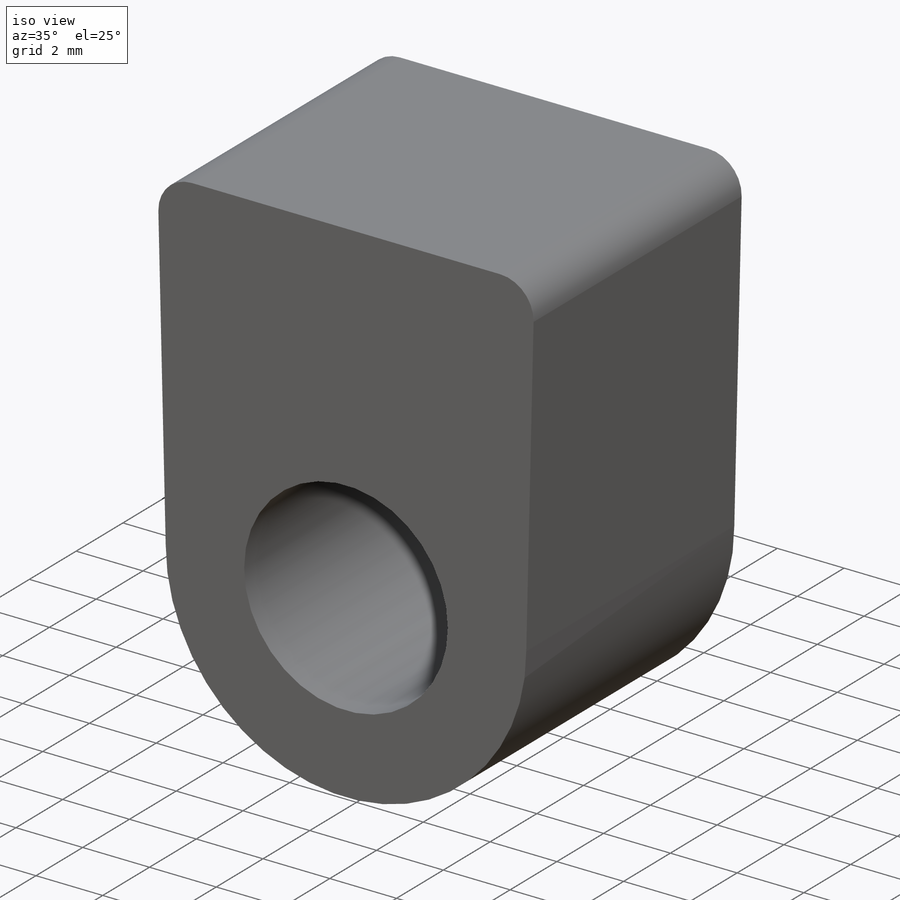
[diagram: iso view]
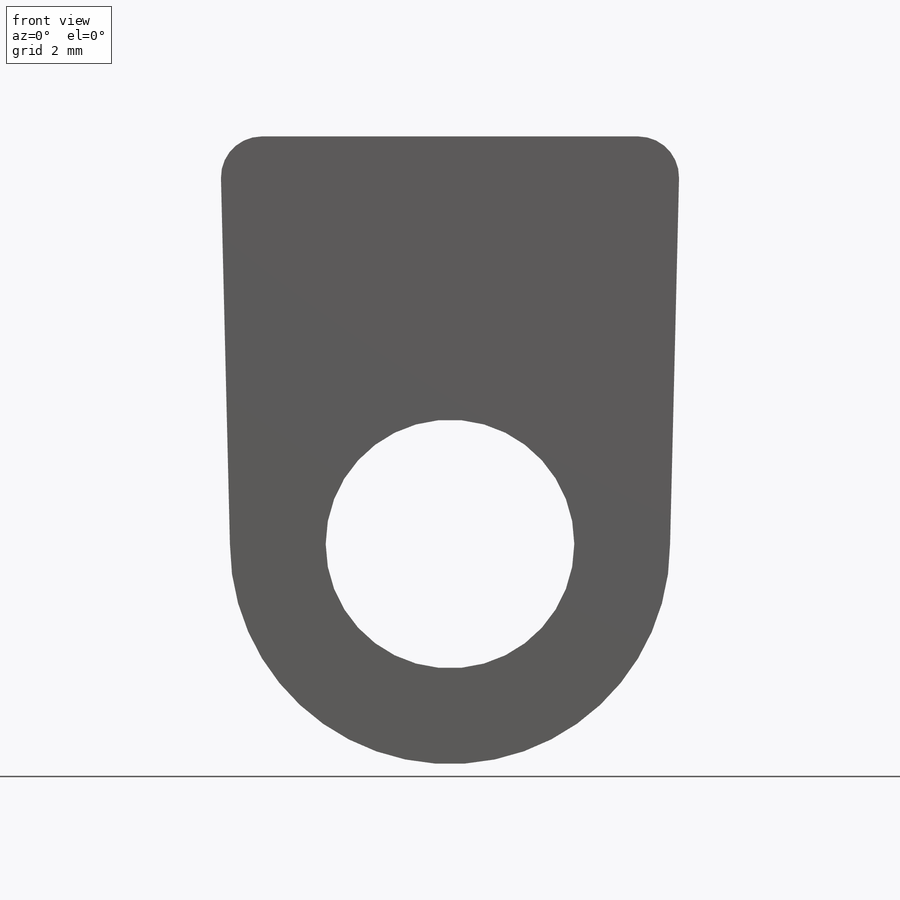
[diagram: front view]
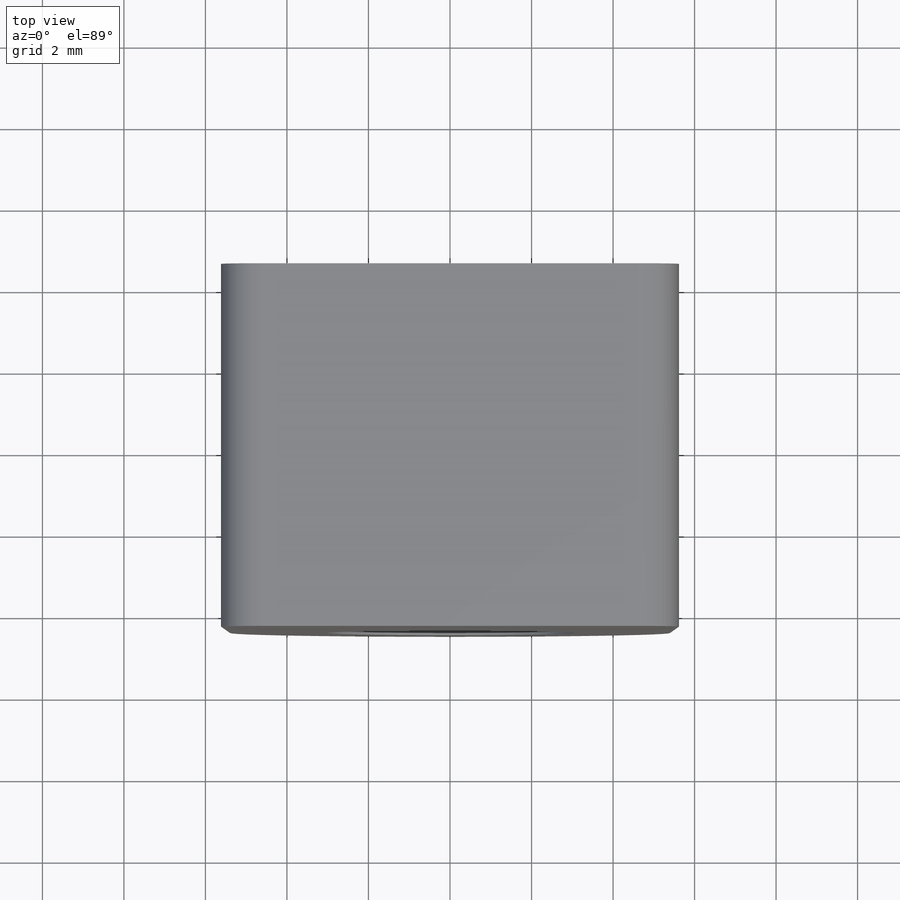
[diagram: top view]
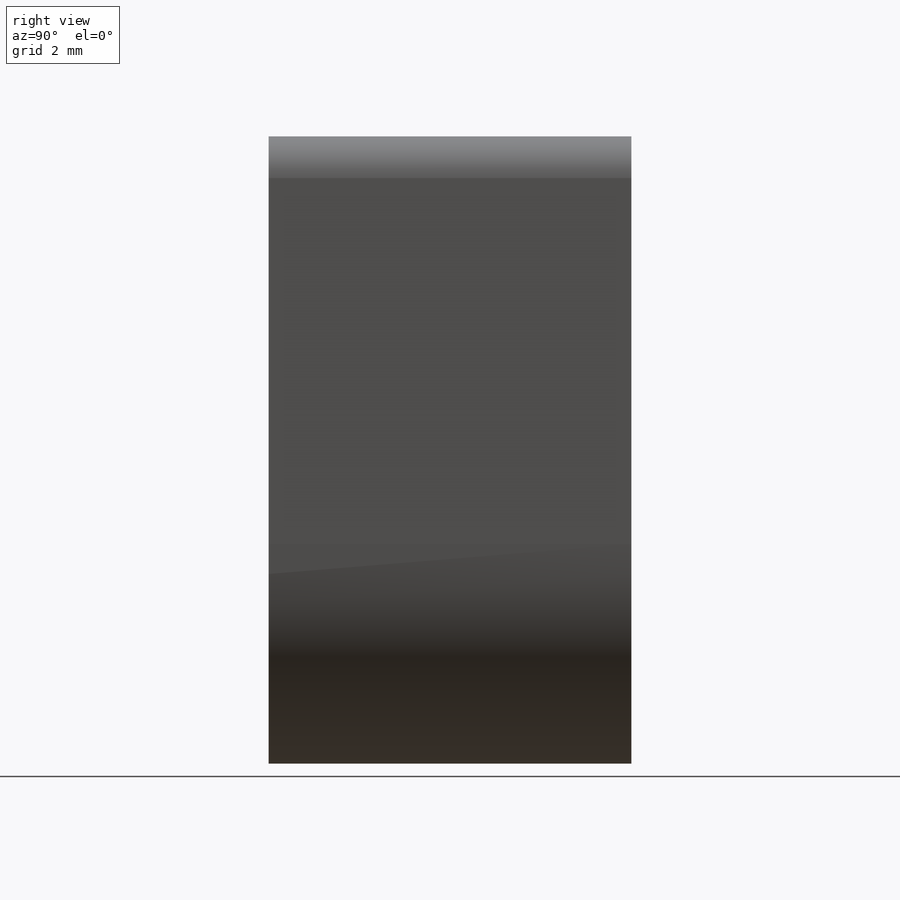
[diagram: right view]
SOLIDWORKS PART (.sldprt)
format: sldprt  version: not decoded by parser v0  size: 197,120 bytes
history: native  units: mm
features: sketch x3, material x1, extrude x1, hole x1, fillet x1 (+12 scaffold rows collapsed)
feature tree (19):
  scaffold x12  (default folders/planes/origin — collapsed)
  material  "POM copolymère d'acétal"
  sketch  "Sketch1"  dims[c1.D2=5.4mm c1.D3=6.1mm c1.D1=15.0mm c1.D4=16.0mm c1.D5=90.0deg c2.D1=~14.269632mm c3.D1=2.8deg c3.D4=10.0mm c3.D5=20.0mm c4.D5=1.4deg c5.D5=12.0mm]
  extrude  "Boss-Extrude1"  Depth=4.45mm
  hole  "Tap Drill for M1.6 Tap1"  Diameter=1.25mm Depth=5mm
  sketch  "Sketch3"  dims[c1.D1=2.5mm c1.D2=~4.102631mm c2.D2=7.75mm]
  sketch  "Sketch2"  dims[hole-wizard template sketch: 47 standard entries collapsed; hole parameters kept: c15.Hole Depth=5.0mm c15.D3=~14.816244mm c15.Drill Angle=180.0deg]
  fillet  "Fillet1"  Radius=1mm
decode coverage: 6 of 6 modeling features carry decoded parameters
note: ~ marks probable driven/reference dimensions
note: suppression state not decoded; provenance and decode notes live in map.json
